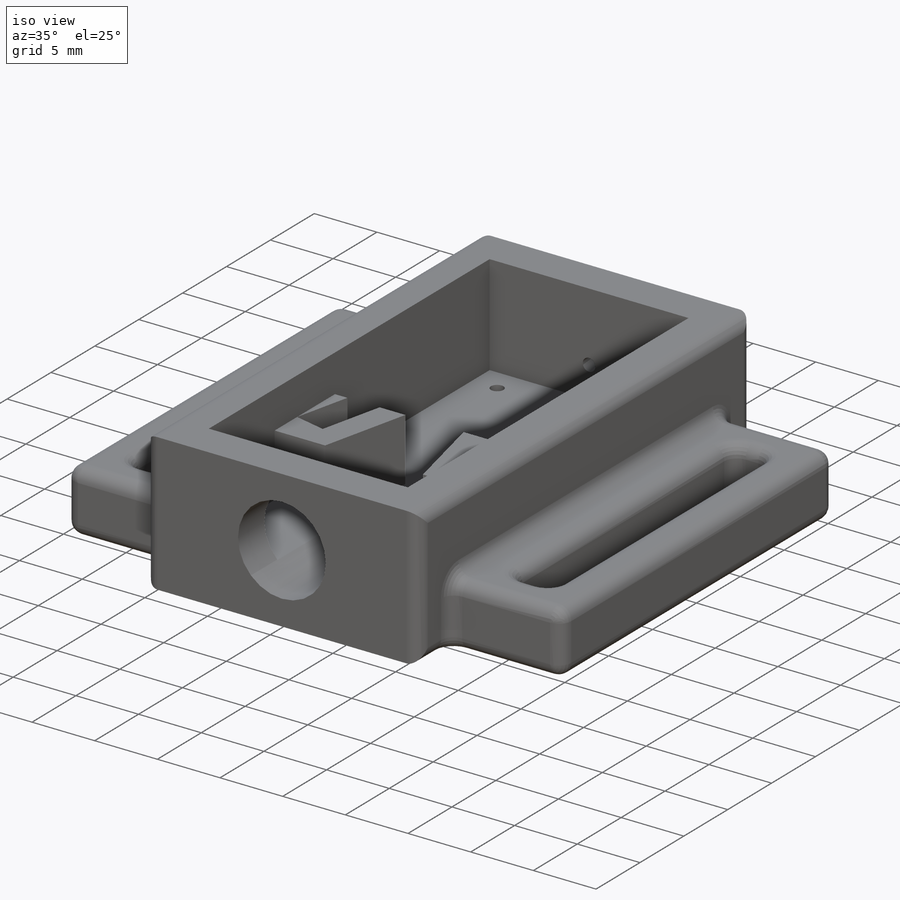
[diagram: iso view]
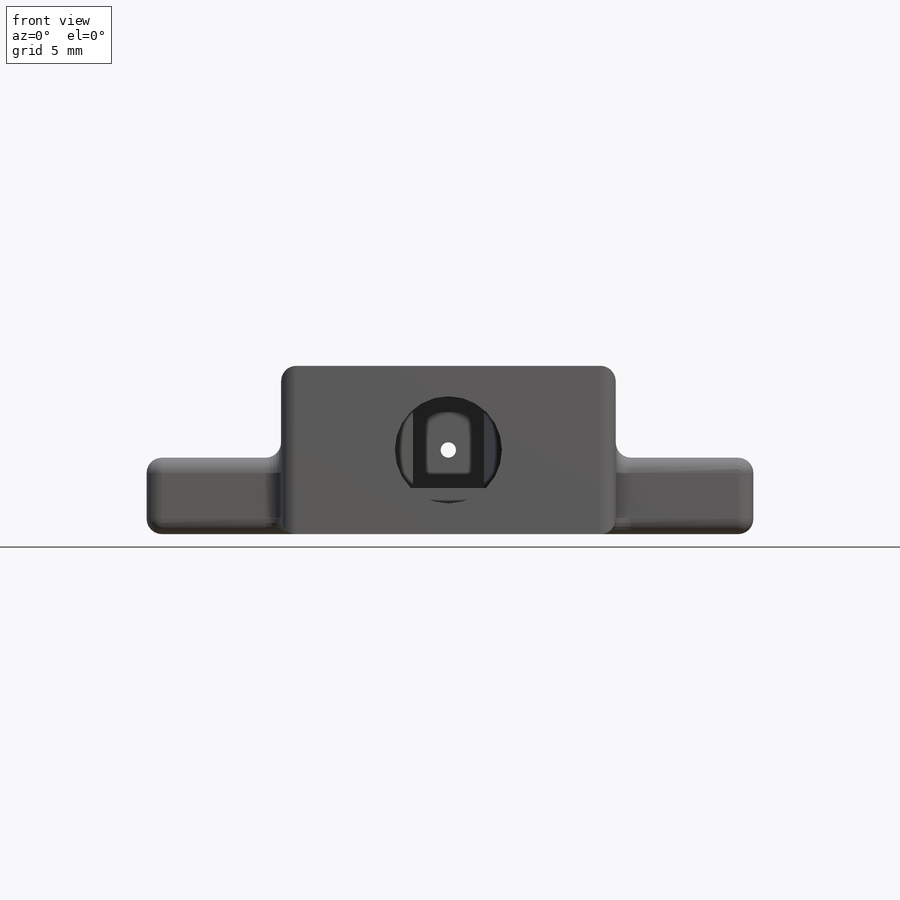
[diagram: front view]
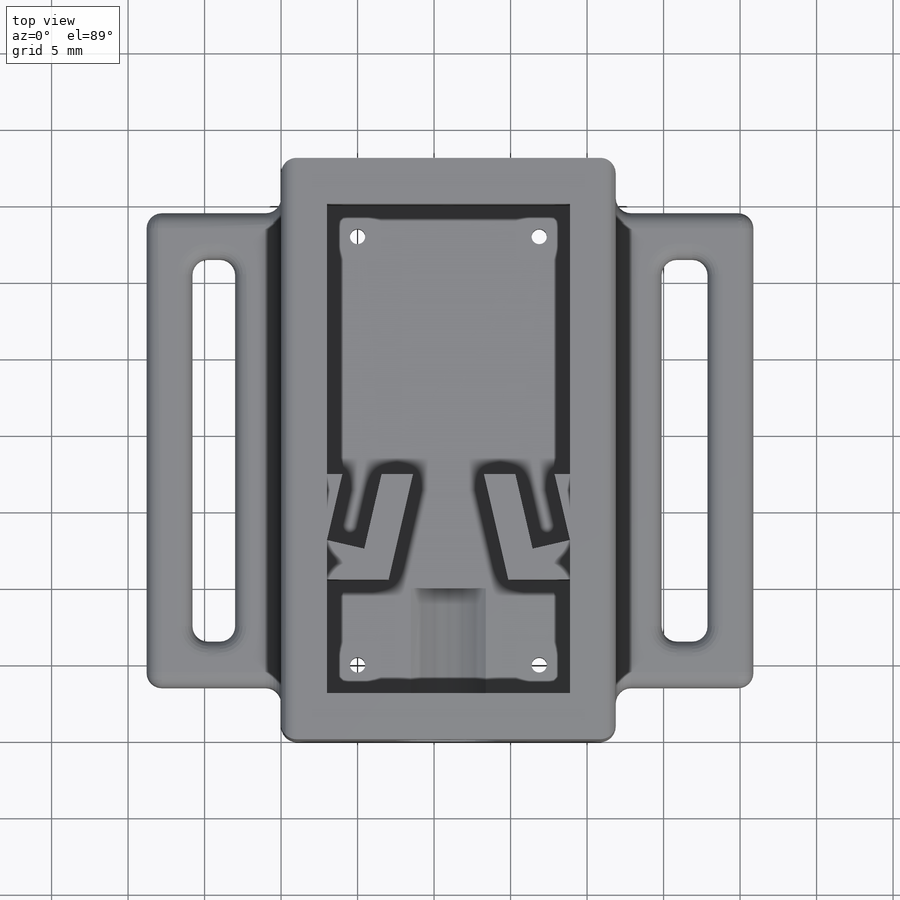
[diagram: top view]
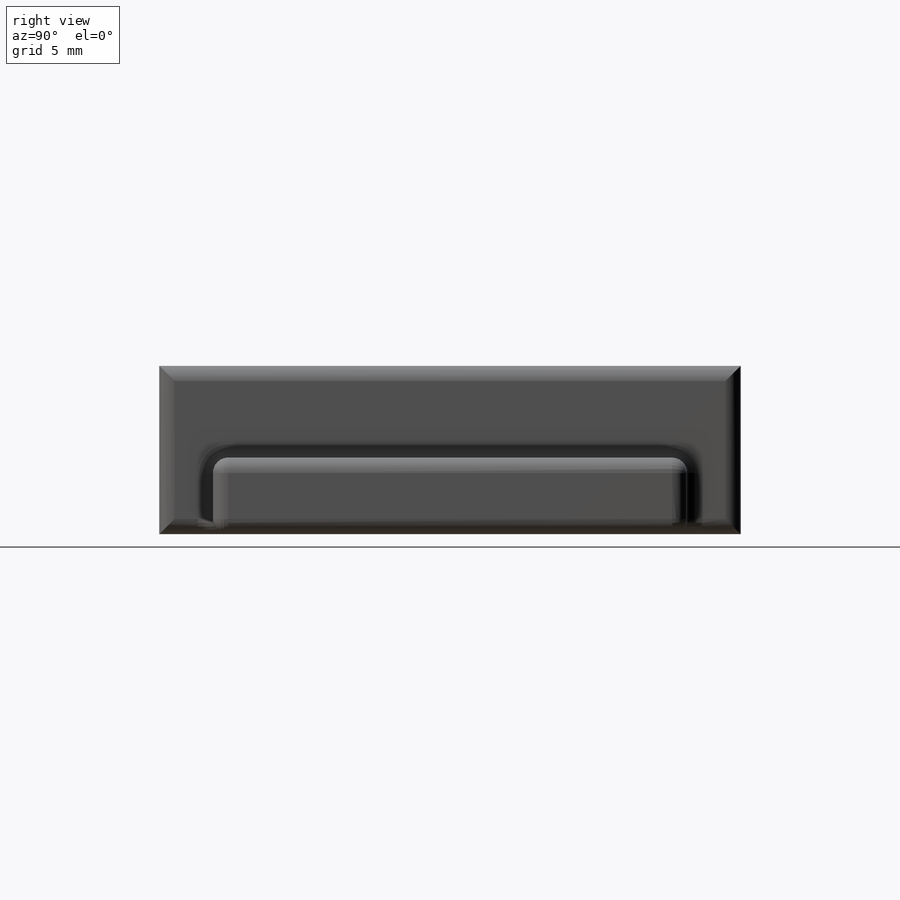
[diagram: right view]
SOLIDWORKS PART (.sldprt)
format: sldprt  version: not decoded by parser v0  size: 593,408 bytes
history: native  units: mm
features: sketch x8, cut_extrude x5, extrude x3, material x1, fillet x1 (+13 scaffold rows collapsed)
feature tree (31):
  scaffold x13  (default folders/planes/origin — collapsed)
  material  "Material <not specified>"
  sketch  "Sketch1"  dims[D1=~21.871781mm]
  extrude  "Boss-Extrude2"  Depth=11mm
  sketch  "Sketch2"  dims[c1.D1=3.0mm c1.D2=3.0mm c1.D3=3.0mm c1.D4=3.0mm c2.D2=3.0mm]
  cut_extrude  "Cut-Extrude1"  Depth=8mm
  sketch  "Sketch3"  dims[c1.D1=~10.998042mm c1.D2=~8.292937mm c2.D2=77.0deg c2.D3=2.3mm c2.D4=2.0mm c2.D5=2.0mm c2.D6=2.3mm c2.D7=2.0mm c2.D8=2.0mm c2.D9=5.0mm c2.D10=5.0mm c2.D11=~6.347277mm c3.D11=77.0deg c3.D12=2.0mm c3.D13=2.0mm c3.D14=2.3mm c3.D15=2.0mm c3.D16=2.0mm c3.D17=~10.998042mm c3.D18=~6.87185mm c4.D18=77.0deg c4.D19=~6.157825mm c5.D19=77.0deg c5.D20=5.0mm c5.D21=5.0mm c5.D22=2.0mm c5.D23=2.3mm c5.D24=2.0mm c5.D25=~10.998042mm c5.D26=2.0mm c5.D27=2.0mm c5.D28=2.3mm c5.D29=~7.052608mm c6.D29=77.0deg c6.D30=5.0mm c6.D31=5.0mm c6.D32=~7.052608mm c7.D32=77.0deg c7.D33=2.0mm c7.D34=2.0mm c7.D35=2.3mm c7.D36=~7.052608mm c8.D36=77.0deg c8.D37=2.0mm c8.D38=2.0mm c8.D39=2.5mm c8.D40=2.5mm c8.D41=2.0mm c8.D42=2.0mm c8.D43=~10.998042mm c8.D44=~6.157825mm c9.D44=77.0deg c9.D45=5.0mm c9.D46=5.0mm c9.D47=2.0mm c9.D48=2.0mm c9.D49=7.5mm c9.D50=7.5mm c9.D51=3.935mm c9.D52=~56.405917mm c9.D1=20.0mm c9.D2=20.0mm c9.D6=20.0mm c9.D7=2.0mm c9.D8=~15.871781mm c9.D9=2.0mm c10.D8=~15.871781mm c10.D7=5.0mm c11.D8=2.0mm c11.D10=~5.437813mm]
  extrude  "Boss-Extrude4"  Depth=5mm
  sketch  "Sketch4"  dims[c1.D1=7.0mm c1.D2=7.0mm c2.D1=5.5mm c2.D2=10.94mm]
  cut_extrude  "Cut-Extrude2"  Depth=10mm
  sketch  "Sketch9"  dims[c1.D1=7.0mm c1.D2=7.0mm c2.D1=5.5mm c2.D2=10.94mm]
  cut_extrude  "Cut-Extrude3"  Depth=1.5mm
  sketch  "Sketch8"  dims[c1.D1=25.0mm c1.D2=3.0mm c1.D3=~8.817057mm c1.D4=3.0mm c1.D5=~2.817057mm c2.D3=3.0mm c2.D5=3.0mm c2.D6=3.0mm c2.D7=3.0mm c2.D8=3.0mm c2.D9=3.0mm c2.D10=25.0mm c2.D11=3.0mm c2.D12=3.5mm c2.D13=3.5mm c2.D14=3.5mm]
  extrude  "Boss-Extrude5"  Depth=5mm
  fillet  "Fillet1"  Radius=1mm
  sketch  "Sketch10"  dims[c1.D1=1.0mm c1.D2=1.0mm c2.D1=10.94mm c2.D2=5.5mm]
  cut_extrude  "Cut-Extrude4"  Depth=1.5mm
  sketch  "Sketch11"  dims[c1.D1=1.0mm c1.D3=1.0mm c1.D5=1.0mm c1.D6=1.0mm c1.D7=1.0mm c1.D8=1.0mm c2.D1=2.0mm c2.D2=2.0mm c2.D3=2.0mm c2.D4=2.0mm c2.D5=2.0mm c2.D6=2.0mm c2.D7=2.0mm c2.D8=2.0mm]
  cut_extrude  "Cut-Extrude5"  Depth=3mm
decode coverage: 17 of 17 modeling features carry decoded parameters
note: ~ marks probable driven/reference dimensions
note: suppression state not decoded; provenance and decode notes live in map.json
